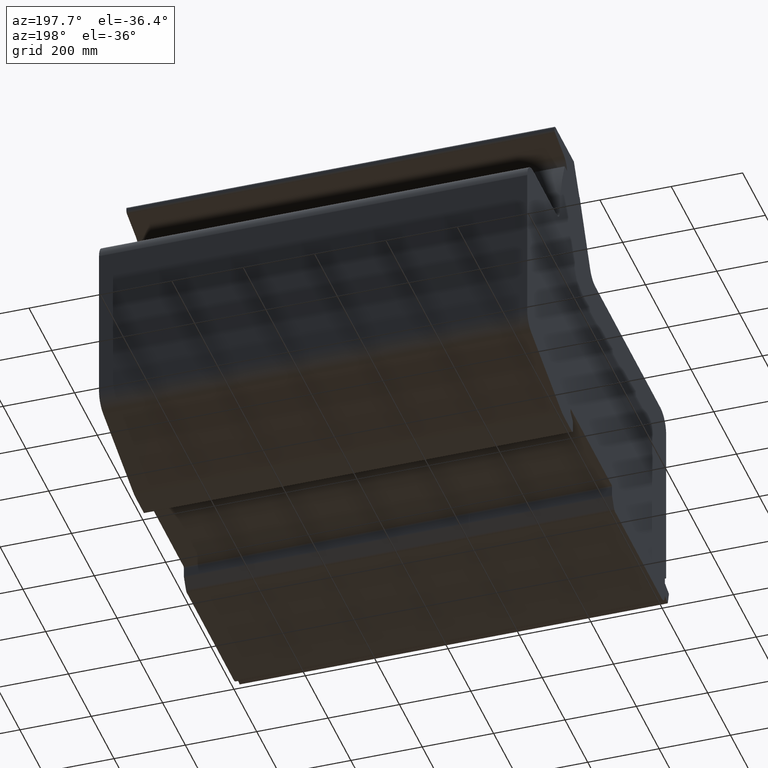
[diagram: clean part render]
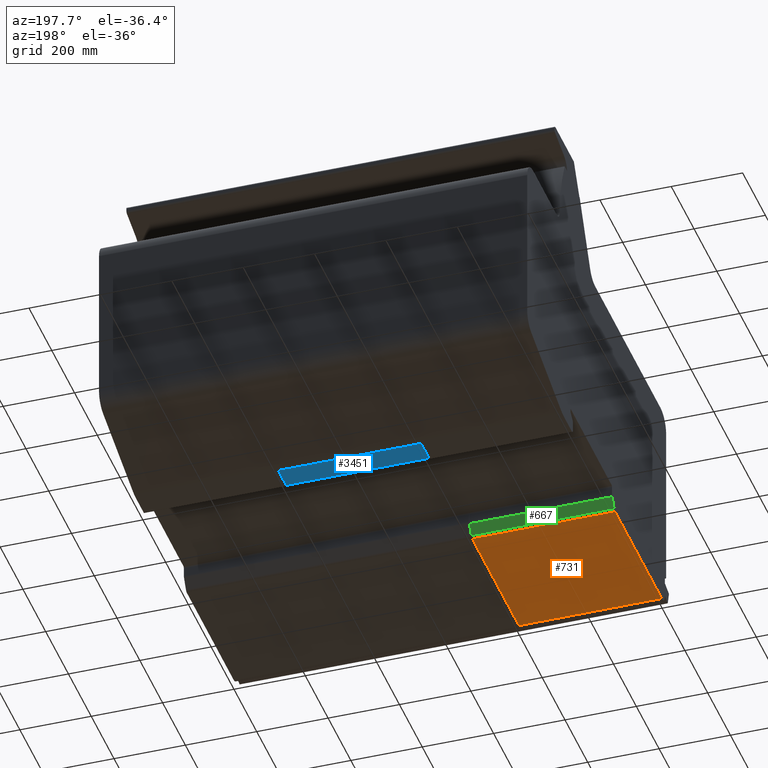
[diagram: same view with three faces highlighted in distinct colors, each labeled with its STEP entity id]
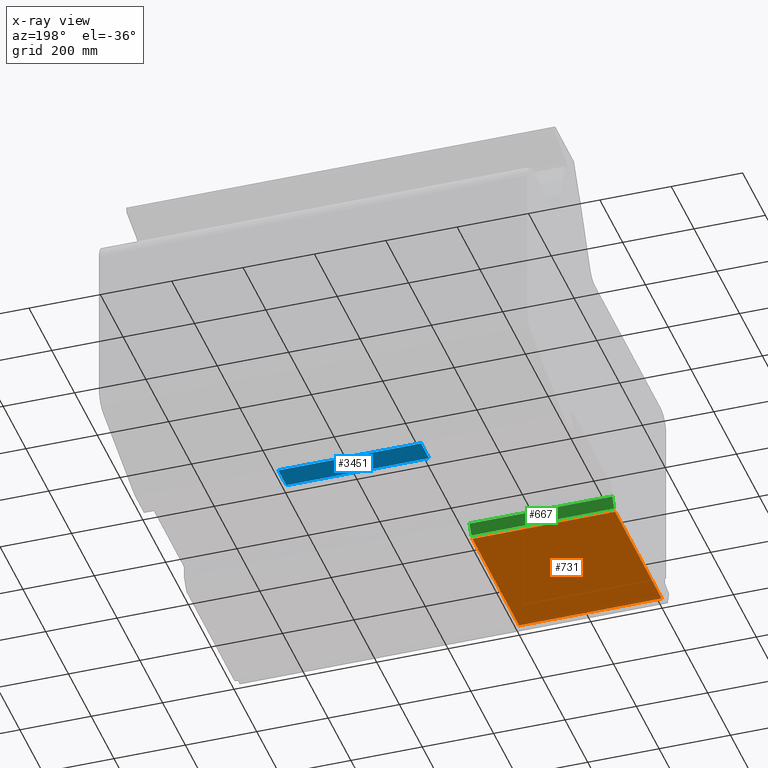
[diagram: x-ray of the same camera — body ghosted, the three highlighted faces saturated]
A machine part, auxiliary view with three faces highlighted in distinct colors.
The next image is the same camera in x-ray (body ghosted, the three faces saturated) — at least one of them is partly hidden behind the body in this view.
Their STEP definitions:

[orange] entity #731 — the highlighted planar face has unit normal (0, 0, -1).
#673=CARTESIAN_POINT('',(400.0,-386.66190378969986,-67.5));
#674=VERTEX_POINT('',#673);
#682=CARTESIAN_POINT('',(0.0,-386.66190378969986,-67.5));
#683=VERTEX_POINT('',#682);
#684=CARTESIAN_POINT('',(0.0,-386.66190378969986,-67.5));
#685=DIRECTION('',(1.0,0.0,0.0));
#686=VECTOR('',#685,400.0);
#687=LINE('',#684,#686);
#688=EDGE_CURVE('',#683,#674,#687,.T.);
#701=CARTESIAN_POINT('',(0.0,-386.66190378969986,-67.5));
#702=DIRECTION('',(0.0,0.0,-1.0));
#703=DIRECTION('',(-1.0,0.0,0.0));
#704=AXIS2_PLACEMENT_3D('',#701,#702,#703);
#705=PLANE('',#704);
#706=CARTESIAN_POINT('',(400.0,-796.00000000000023,-67.499999999999829));
#707=VERTEX_POINT('',#706);
#708=CARTESIAN_POINT('',(400.0,-386.66190378969986,-67.5));
#709=DIRECTION('',(0.0,-1.0,0.0));
#710=VECTOR('',#709,409.33809621030036);
#711=LINE('',#708,#710);
#712=EDGE_CURVE('',#674,#707,#711,.T.);
#713=ORIENTED_EDGE('',*,*,#712,.T.);
#714=CARTESIAN_POINT('',(0.0,-796.00000000000023,-67.499999999999829));
#715=VERTEX_POINT('',#714);
#716=CARTESIAN_POINT('',(0.0,-796.00000000000023,-67.499999999999829));
#717=DIRECTION('',(1.0,0.0,0.0));
#718=VECTOR('',#717,400.0);
#719=LINE('',#716,#718);
#720=EDGE_CURVE('',#715,#707,#719,.T.);
#721=ORIENTED_EDGE('',*,*,#720,.F.);
#722=CARTESIAN_POINT('',(0.0,-796.00000000000023,-67.499999999999829));
#723=DIRECTION('',(0.0,1.0,0.0));
#724=VECTOR('',#723,409.33809621030036);
#725=LINE('',#722,#724);
#726=EDGE_CURVE('',#715,#683,#725,.T.);
#727=ORIENTED_EDGE('',*,*,#726,.T.);
#728=ORIENTED_EDGE('',*,*,#688,.T.);
#729=EDGE_LOOP('',(#713,#721,#727,#728));
#730=FACE_OUTER_BOUND('',#729,.T.);
#731=ADVANCED_FACE('',(#730),#705,.T.);

[blue] entity #3451 — the highlighted planar face has unit normal (0, 0, -1).
#3393=CARTESIAN_POINT('',(800.0,63.865135062699672,-67.499999999999744));
#3394=VERTEX_POINT('',#3393);
#3402=CARTESIAN_POINT('',(400.0,63.865135062699672,-67.499999999999744));
#3403=VERTEX_POINT('',#3402);
#3404=CARTESIAN_POINT('',(400.0,63.865135062699672,-67.499999999999744));
#3405=DIRECTION('',(1.0,0.0,0.0));
#3406=VECTOR('',#3405,400.0);
#3407=LINE('',#3404,#3406);
#3408=EDGE_CURVE('',#3403,#3394,#3407,.T.);
#3421=CARTESIAN_POINT('',(400.0,63.865135062699672,-67.499999999999744));
#3422=DIRECTION('',(0.0,0.0,-1.0));
#3423=DIRECTION('',(-1.0,0.0,0.0));
#3424=AXIS2_PLACEMENT_3D('',#3421,#3422,#3423);
#3425=PLANE('',#3424);
#3426=CARTESIAN_POINT('',(800.0,-5.999999999999943,-67.5));
#3427=VERTEX_POINT('',#3426);
#3428=CARTESIAN_POINT('',(800.0,63.865135062699665,-67.499999999999758));
#3429=DIRECTION('',(0.0,-1.0,0.0));
#3430=VECTOR('',#3429,69.865135062699608);
#3431=LINE('',#3428,#3430);
#3432=EDGE_CURVE('',#3394,#3427,#3431,.T.);
#3433=ORIENTED_EDGE('',*,*,#3432,.T.);
#3434=CARTESIAN_POINT('',(400.0,-5.999999999999943,-67.5));
#3435=VERTEX_POINT('',#3434);
#3436=CARTESIAN_POINT('',(400.0,-5.999999999999943,-67.5));
#3437=DIRECTION('',(1.0,0.0,0.0));
#3438=VECTOR('',#3437,400.0);
#3439=LINE('',#3436,#3438);
#3440=EDGE_CURVE('',#3435,#3427,#3439,.T.);
#3441=ORIENTED_EDGE('',*,*,#3440,.F.);
#3442=CARTESIAN_POINT('',(400.0,-5.999999999999943,-67.5));
#3443=DIRECTION('',(0.0,1.0,0.0));
#3444=VECTOR('',#3443,69.865135062699608);
#3445=LINE('',#3442,#3444);
#3446=EDGE_CURVE('',#3435,#3403,#3445,.T.);
#3447=ORIENTED_EDGE('',*,*,#3446,.T.);
#3448=ORIENTED_EDGE('',*,*,#3408,.T.);
#3449=EDGE_LOOP('',(#3433,#3441,#3447,#3448));
#3450=FACE_OUTER_BOUND('',#3449,.T.);
#3451=ADVANCED_FACE('',(#3450),#3425,.T.);

[green] entity #667 — the highlighted planar face has unit normal (0, 0.8575, -0.5145).
#609=CARTESIAN_POINT('',(400.0,-361.42507074288375,-34.875117904789754));
#610=VERTEX_POINT('',#609);
#618=CARTESIAN_POINT('',(0.0,-361.42507074288375,-34.875117904789754));
#619=VERTEX_POINT('',#618);
#620=CARTESIAN_POINT('',(0.0,-361.42507074288375,-34.875117904789754));
#621=DIRECTION('',(1.0,0.0,0.0));
#622=VECTOR('',#621,400.0);
#623=LINE('',#620,#622);
#624=EDGE_CURVE('',#619,#610,#623,.T.);
#637=CARTESIAN_POINT('',(0.0,-361.42507074288375,-34.875117904789754));
#638=DIRECTION('',(0.0,0.85749292571255,-0.514495755427517));
#639=DIRECTION('',(-1.0,0.0,0.0));
#640=AXIS2_PLACEMENT_3D('',#637,#638,#639);
#641=PLANE('',#640);
#642=CARTESIAN_POINT('',(400.0,-378.08697453258333,-62.644957554289782));
#643=VERTEX_POINT('',#642);
#644=CARTESIAN_POINT('',(400.0,-361.42507074288375,-34.875117904789754));
#645=DIRECTION('',(0.0,-0.514495755427517,-0.85749292571255));
#646=VECTOR('',#645,32.384919824760246);
#647=LINE('',#644,#646);
#648=EDGE_CURVE('',#610,#643,#647,.T.);
#649=ORIENTED_EDGE('',*,*,#648,.T.);
#650=CARTESIAN_POINT('',(0.0,-378.08697453258333,-62.644957554289782));
#651=VERTEX_POINT('',#650);
#652=CARTESIAN_POINT('',(0.0,-378.08697453258333,-62.644957554289782));
#653=DIRECTION('',(1.0,0.0,0.0));
#654=VECTOR('',#653,400.0);
#655=LINE('',#652,#654);
#656=EDGE_CURVE('',#651,#643,#655,.T.);
#657=ORIENTED_EDGE('',*,*,#656,.F.);
#658=CARTESIAN_POINT('',(0.0,-378.08697453258333,-62.644957554289782));
#659=DIRECTION('',(0.0,0.514495755427517,0.85749292571255));
#660=VECTOR('',#659,32.384919824760246);
#661=LINE('',#658,#660);
#662=EDGE_CURVE('',#651,#619,#661,.T.);
#663=ORIENTED_EDGE('',*,*,#662,.T.);
#664=ORIENTED_EDGE('',*,*,#624,.T.);
#665=EDGE_LOOP('',(#649,#657,#663,#664));
#666=FACE_OUTER_BOUND('',#665,.T.);
#667=ADVANCED_FACE('',(#666),#641,.T.);